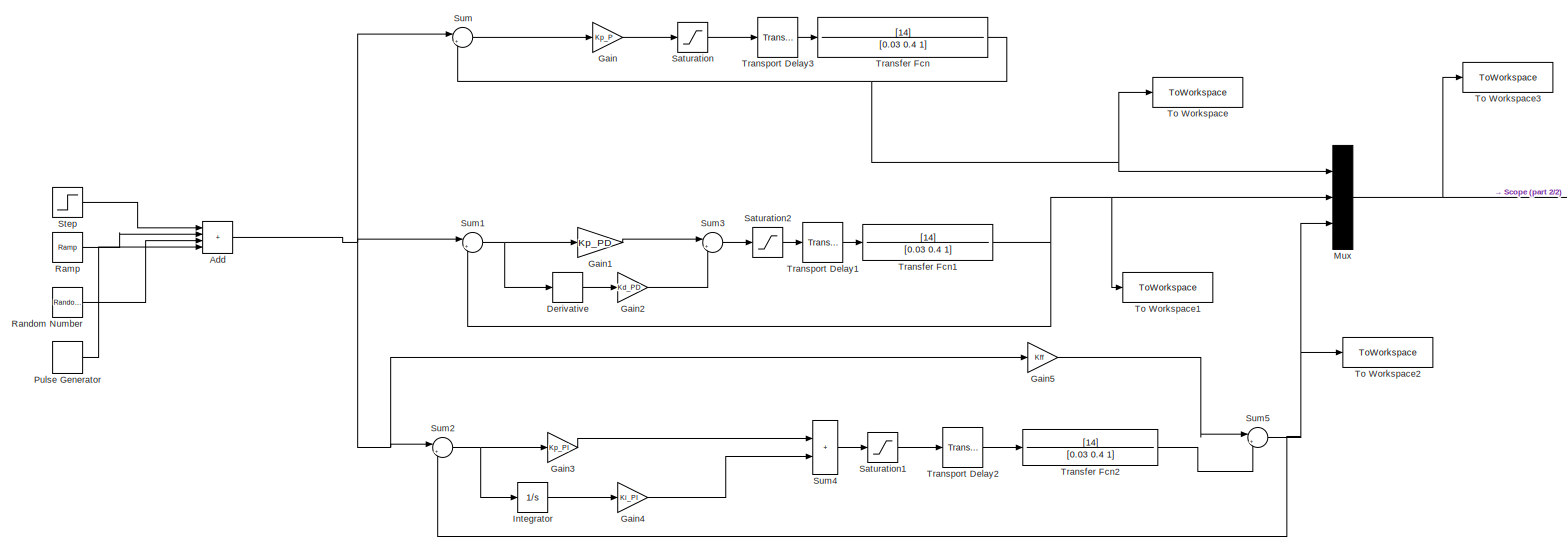
[diagram: root canvas - part 1/2, most of the canvas]
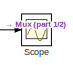
[diagram: root canvas - part 2/2, middle right region]
MODEL slx_a9d83ac11039
KIND model
CONFIG AbsTol = auto
CONFIG EnableMultiTasking = off
CONFIG FixedStep = auto
CONFIG MaxStep = auto
CONFIG MinStep = auto
CONFIG RelTol = 1e-3
CONFIG SampleTimeConstraint = Unconstrained
CONFIG SolverName = VariableStepAuto
CONFIG StartTime = 0.0
CONFIG StopTime = 10.0
BLOCK [Sum] Add
  IconShape = rectangular
  Inputs = ++++
BLOCK [Derivative] Derivative
BLOCK [Gain] Gain
  Gain = Kp_P
BLOCK [Gain] Gain1
  Gain = Kp_PD
BLOCK [Gain] Gain2
  Gain = Kd_PD
BLOCK [Gain] Gain3
  Gain = Kp_PI
BLOCK [Gain] Gain4
  Gain = Ki_PI
BLOCK [Gain] Gain5
  Gain = Kff
BLOCK [Integrator] Integrator
BLOCK [Mux] Mux
  DisplayOption = bar
  Inputs = 3
BLOCK [DiscretePulseGenerator] Pulse Generator
  Period = 3
  PulseType = Time based
  PulseWidth = 50
BLOCK [Reference] Ramp  REF=simulink/Sources/Ramp
  SourceBlock = simulink/Sources/Ramp
  SourceType = Ramp
BLOCK [RandomNumber] Random Number
  SampleTime = 0.1
  Variance = 0.1
BLOCK [Saturate] Saturation
  LowerLimit = -100
  UpperLimit = 100
BLOCK [Saturate] Saturation1
  LowerLimit = -100
  UpperLimit = 100
BLOCK [Saturate] Saturation2
  LowerLimit = -100
  UpperLimit = 100
BLOCK [Scope] Scope
  ActiveDisplayYMaximum = 199.13018616684852
  ActiveDisplayYMinimum = -178.1214772413569
  ContainerLayout = {"WindowBounds":[80,66,1280,768]}
  Floating = off
  GraphicalSettings = {"Style":{"BackgroundColor":[0.12941176470588237,0.12941176470588237,0.12941176470588237],"AxesColor":[0.07058823529411765,0.07058823529411765,0.07058823529411765],"LabelsColor":[0.8509803921568627,0.8509803921568627,0.8509803921568627],"PreserveColors":false,"Visible":[true,true,true],"LineStyle":["-","-","-"],"LineWidth":[1.5,1.5,1.5],"BarWidth":[0.9,0.9,0.9],"LineColor":["auto","auto","auto"],"...<+2213ch>
  MultipleDisplayCache = [{"MaxYLimMag":199.13018616684852,"MaxYLimReal":199.13018616684852,"MinYLimMag":0,"MinYLimReal":-178.1214772413569,"PlotAsMagnitudePhase":false,"ShowGrid":true,"ShowLegend":false,"Title":"%<SignalLabel>","YLabel":""}]
  NumInputPorts = 1
  ScopeFrameLocation = container
  Visible = on
  WasSavedAsWebScope = on
  WindowPosition = [80.000000,66.000000,1280.000000,768.000000,]
BLOCK [Step] Step
  After = 10
  SampleTime = 0
BLOCK [Sum] Sum
  Inputs = |+-
BLOCK [Sum] Sum1
  Inputs = |+-
BLOCK [Sum] Sum2
  Inputs = |+-
BLOCK [Sum] Sum3
  Inputs = |++
BLOCK [Sum] Sum4
  IconShape = rectangular
  Inputs = |++
BLOCK [Sum] Sum5
  Inputs = |++
BLOCK [ToWorkspace] To Workspace
  FixptAsFi = on
  MaxDataPoints = inf
  SampleTime = -1
  VariableName = Raspuns_P
BLOCK [ToWorkspace] To Workspace1
  FixptAsFi = on
  MaxDataPoints = inf
  SampleTime = -1
  VariableName = Raspuns_PD
BLOCK [ToWorkspace] To Workspace2
  FixptAsFi = on
  MaxDataPoints = inf
  SampleTime = -1
  VariableName = Raspuns_PI_FFW
BLOCK [ToWorkspace] To Workspace3
  FixptAsFi = on
  MaxDataPoints = inf
  SampleTime = -1
  VariableName = Raspuns
BLOCK [TransferFcn] Transfer Fcn
  Denominator = [0.03 0.4 1]
  Numerator = [14]
BLOCK [TransferFcn] Transfer Fcn1
  Denominator = [0.03 0.4 1]
  Numerator = [14]
BLOCK [TransferFcn] Transfer Fcn2
  Denominator = [0.03 0.4 1]
  Numerator = [14]
BLOCK [TransportDelay] Transport Delay1
  DelayTime = 0.05
BLOCK [TransportDelay] Transport Delay2
  DelayTime = 0.05
BLOCK [TransportDelay] Transport Delay3
  DelayTime = 0.05
NET Add:1 -> Gain5:1, Sum1:1, Sum2:1, Sum:1
LINE Derivative:1 -> Gain2:1
LINE Gain1:1 -> Sum3:1
LINE Gain2:1 -> Sum3:2
LINE Gain3:1 -> Sum4:1
LINE Gain4:1 -> Sum4:2
LINE Gain5:1 -> Sum5:1
LINE Gain:1 -> Saturation:1
LINE Integrator:1 -> Gain4:1
NET Mux:1 -> Scope:1, To Workspace3:1
LINE Pulse Generator:1 -> Add:4
LINE Ramp:1 -> Add:2
LINE Random Number:1 -> Add:3
LINE Saturation1:1 -> Transport Delay2:1
LINE Saturation2:1 -> Transport Delay1:1
LINE Saturation:1 -> Transport Delay3:1
LINE Step:1 -> Add:1
NET Sum1:1 -> Derivative:1, Gain1:1
NET Sum2:1 -> Gain3:1, Integrator:1
LINE Sum3:1 -> Saturation2:1
LINE Sum4:1 -> Saturation1:1
NET Sum5:1 -> Mux:3, Sum2:2, To Workspace2:1
LINE Sum:1 -> Gain:1
NET Transfer Fcn1:1 -> Mux:2, Sum1:2, To Workspace1:1
LINE Transfer Fcn2:1 -> Sum5:2
NET Transfer Fcn:1 -> Mux:1, Sum:2, To Workspace:1
LINE Transport Delay1:1 -> Transfer Fcn1:1
LINE Transport Delay2:1 -> Transfer Fcn2:1
LINE Transport Delay3:1 -> Transfer Fcn:1
note: NET lines group one-source signal fan-out (src -> all destinations, sorted); 1:1 wires keep LINE
